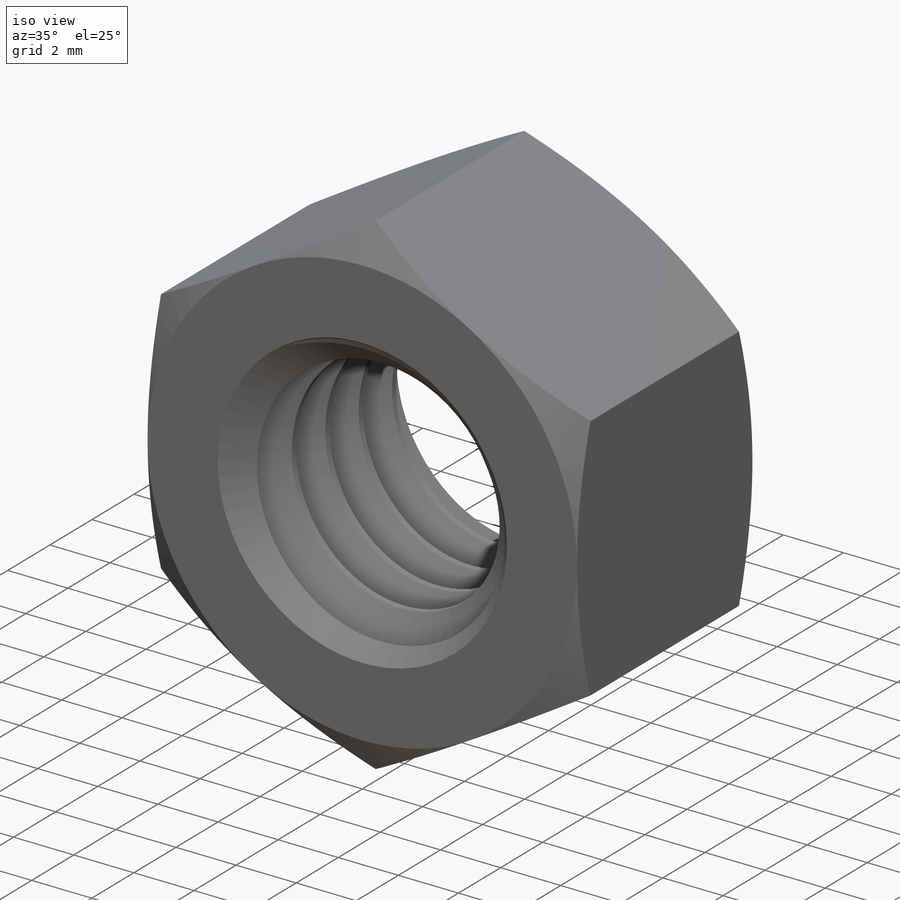
[diagram: iso view]
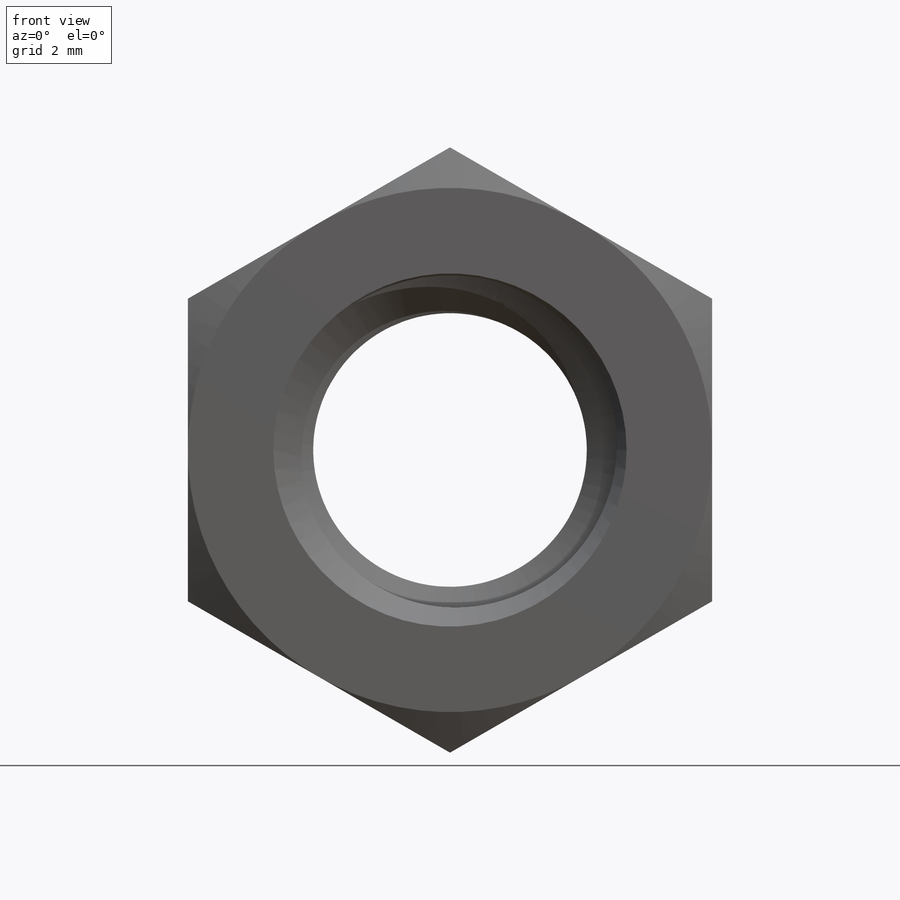
[diagram: front view]
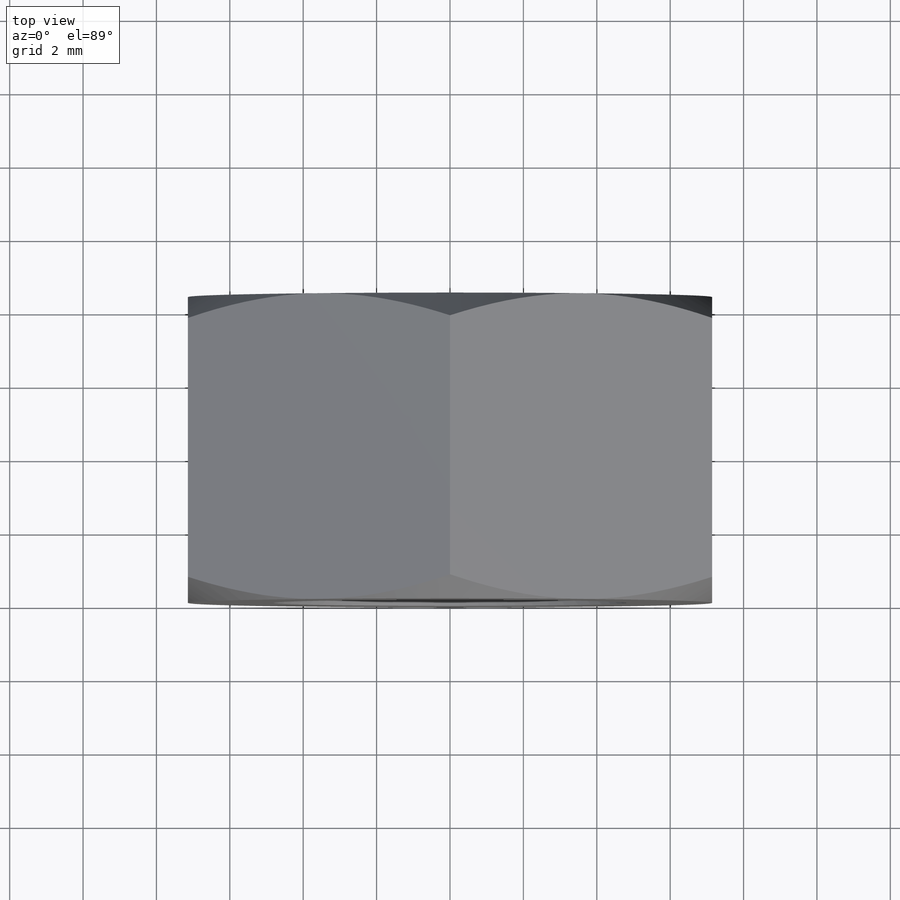
[diagram: top view]
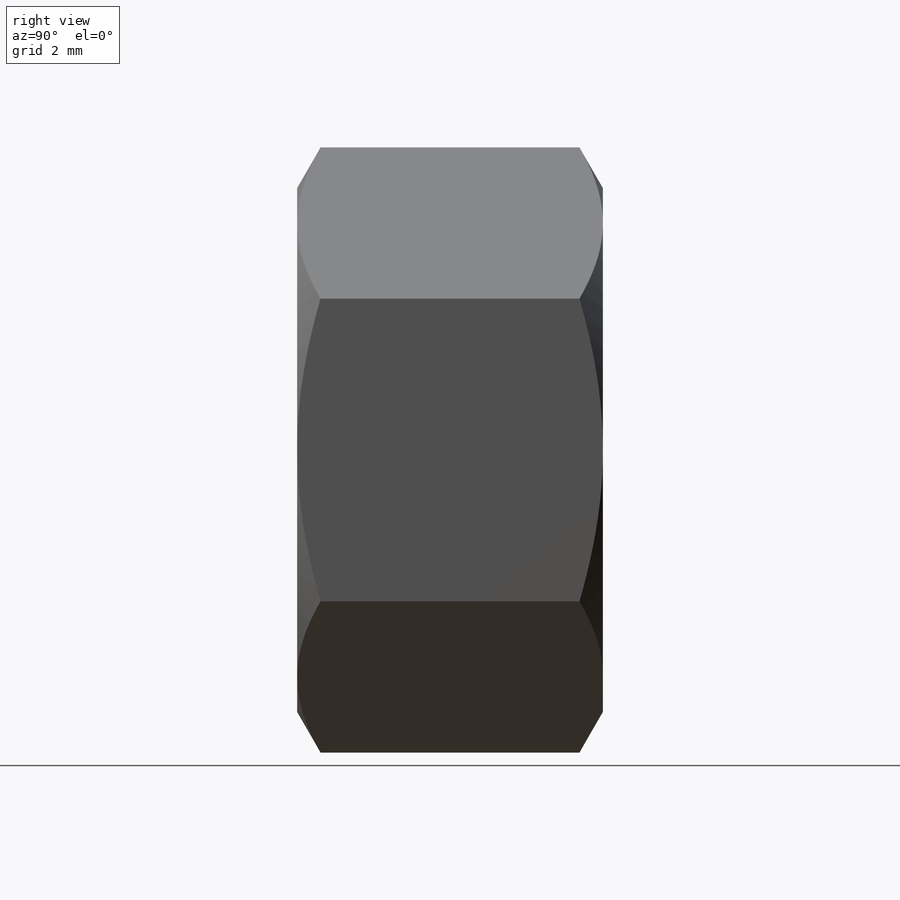
[diagram: right view]
SOLIDWORKS PART (.sldprt)
format: sldprt  version: not decoded by parser v0  size: 419,840 bytes
history: native  units: mm
features: sketch x11, cut_extrude x7, material x1, extrude x1, plane x1, helix x1, sweep x1 (+13 scaffold rows collapsed)
feature tree (36):
  scaffold x13  (default folders/planes/origin — collapsed)
  material  "Material <not specified>"
  sketch  "Sketch1"  dims[hex size=14.2875mm TUBE OD=4.7625mm]
  extrude  "Extrude1"  Depth=8.334375mm hex width=8.334375mm
  sketch  "Sketch12"
  sketch  "Sketch2"
  cut_extrude  "Cut-Extrude6"  [1 undecoded]
  sketch  "Sketch4"
  cut_extrude  "Cut-Extrude3"  Depth=6.35mm
  plane  "Plane1"  Offset=1.389062mm
  sketch  "Sketch5"  dims[thread od=9.525mm]
  cut_extrude  "Cut-Extrude4"  [1 undecoded]
  sketch  "Sketch6"  dims[D1=0.0mm]
  helix  "Helix/Spiral1"  Pitch=14.684375mm pitch=1.5875mm
  sketch  "Sketch9"  dims[D1=0.0508mm]
  sketch  "Sketch7"  dims[c1.D1=~0.198437mm c1.D2=~0.79375mm c1.D3=~1.528242mm c2.D3=60.0deg]
  sweep  "Sweep1"
  sketch  "Sketch8"  dims[D1=0.508mm]
  cut_extrude  "Cut-Extrude5"  [1 undecoded]
  sketch  "Sketch10"  dims[D1=0.0mm]
  cut_extrude  "Cut-Extrude8"  [1 undecoded]
  cut_extrude  "Cut-Extrude7"  [1 undecoded]
  sketch  "Sketch11"  dims[D1=0.0mm]
  cut_extrude  "Cut-Extrude9"  [1 undecoded]
decode coverage: 11 of 21 modeling features carry decoded parameters
note: ~ marks probable driven/reference dimensions
note: 6 parameter values undecoded
summary: no parameter record found for 6 features
note: suppression state not decoded; provenance and decode notes live in map.json
